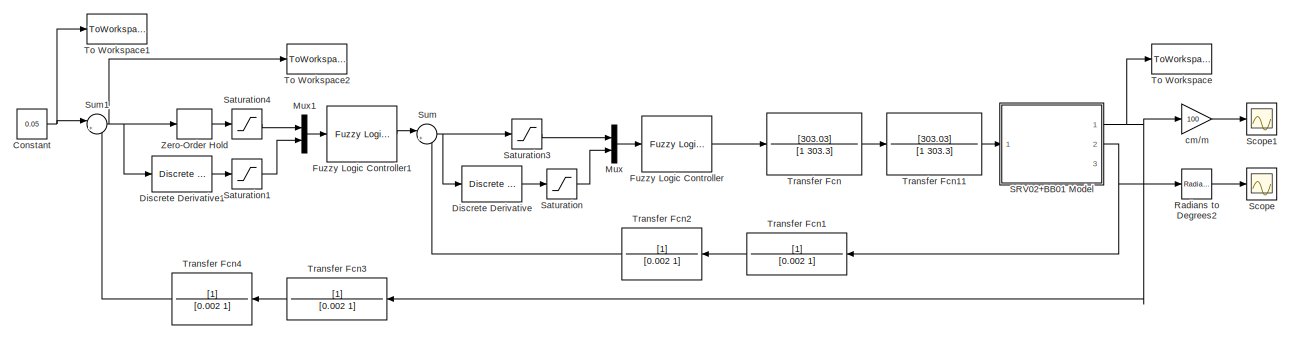
[diagram: root canvas - part 1/2, full width, top band]
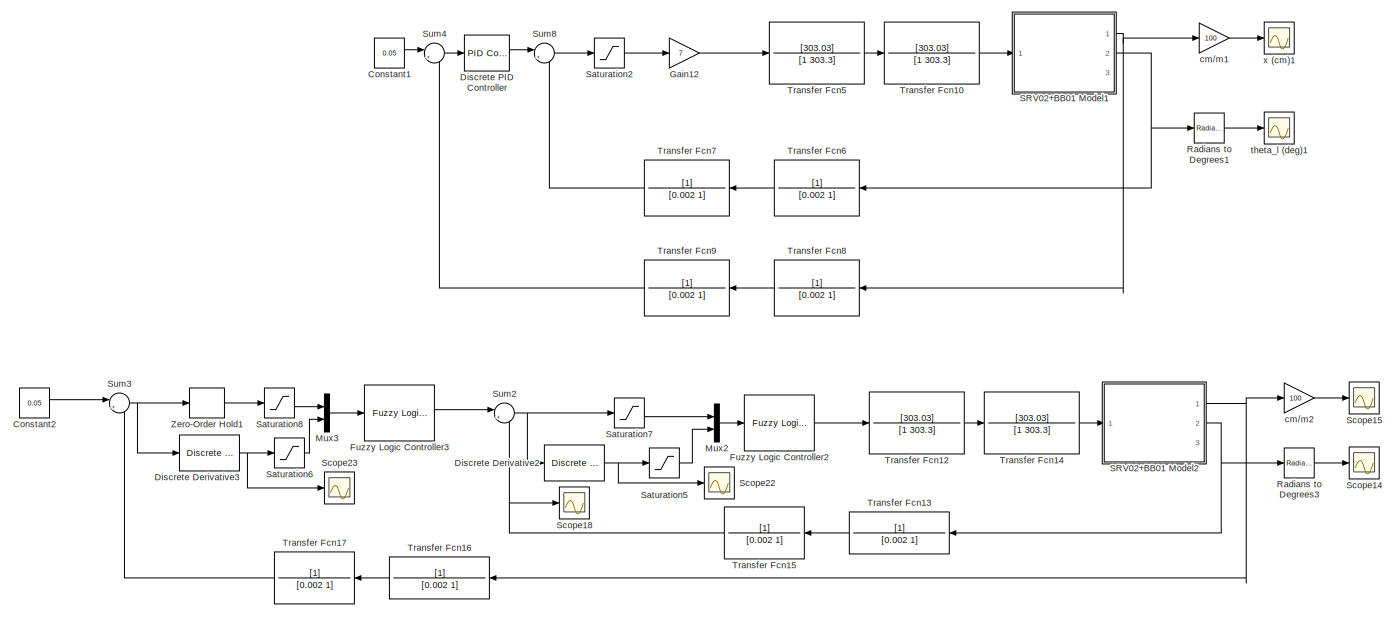
[diagram: root canvas - part 2/2, full width, bottom band]
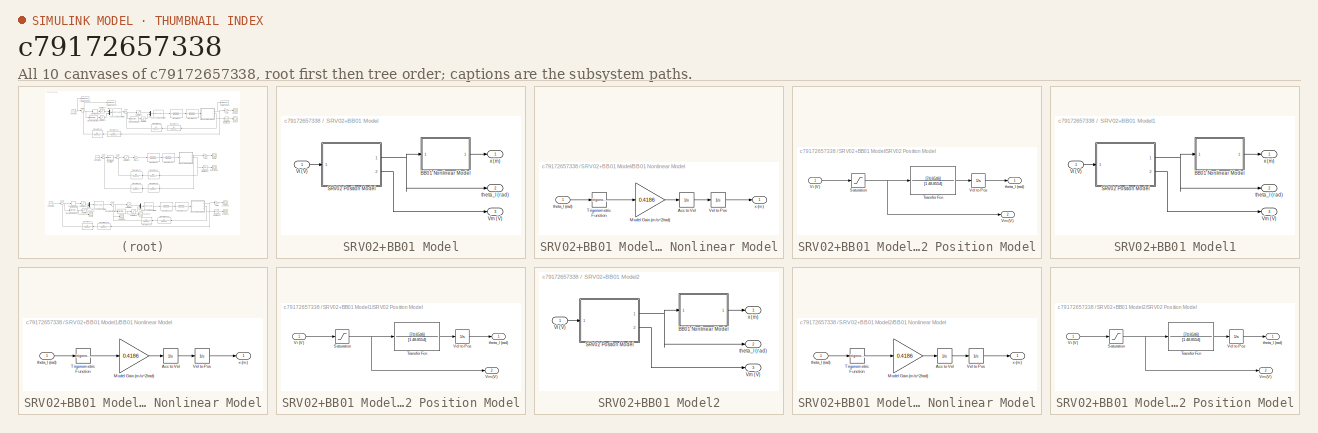
[diagram: thumbnail index - all 10 canvases of the model, root first then tree order]
MODEL slx_c79172657338
KIND model
CONFIG AbsTol = auto
CONFIG FixedStep = auto
CONFIG MaxStep = auto
CONFIG MinStep = auto
CONFIG RelTol = 1e-3
CONFIG SampleTimeConstraint = Unconstrained
CONFIG Solver = ode45
CONFIG SolverMode = SingleTasking
CONFIG SolverName = ode45
CONFIG StartTime = 0.0
CONFIG StopTime = 3
BLOCK [Constant] Constant
  Value = 0.05
BLOCK [Constant] Constant1
  Value = 0.05
BLOCK [Constant] Constant2
  Value = 0.05
BLOCK [Reference] Discrete Derivative  REF=simulink/Discrete/Discrete Derivative
  DoSatur = off
  ICPrevScaledInput = 0.0
  InputProcessing = Elements as channels (sample based)
  LockScale = off
  OutDataType = fixdt(1, 16)
  OutDataTypeStr = Inherit: Inherit via internal rule
  OutMax = []
  OutMin = []
  OutScaling = 2^-10
  OutputDataTypeScalingMode = Inherit via internal rule
  Ports = [1, 1]
  RndMeth = Floor
  SourceBlock = simulink/Discrete/Discrete Derivative
  SourceType = Discrete Derivative
  gainval = 1.0
BLOCK [Reference] Discrete Derivative1  REF=simulink/Discrete/Discrete Derivative
  DoSatur = off
  ICPrevScaledInput = 0.0
  InputProcessing = Elements as channels (sample based)
  LockScale = off
  OutDataType = fixdt(1, 16)
  OutDataTypeStr = Inherit: Inherit via internal rule
  OutMax = []
  OutMin = []
  OutScaling = 2^-10
  OutputDataTypeScalingMode = Inherit via internal rule
  Ports = [1, 1]
  RndMeth = Floor
  SourceBlock = simulink/Discrete/Discrete Derivative
  SourceType = Discrete Derivative
  gainval = 1.0
BLOCK [Reference] Discrete Derivative2  REF=simulink/Discrete/Discrete Derivative
  DoSatur = off
  ICPrevScaledInput = 0.0
  InputProcessing = Elements as channels (sample based)
  LockScale = off
  OutDataType = fixdt(1, 16)
  OutDataTypeStr = Inherit: Inherit via internal rule
  OutMax = []
  OutMin = []
  OutScaling = 2^-10
  OutputDataTypeScalingMode = Inherit via internal rule
  Ports = [1, 1]
  RndMeth = Floor
  SourceBlock = simulink/Discrete/Discrete Derivative
  SourceType = Discrete Derivative
  gainval = 1.0
BLOCK [Reference] Discrete Derivative3  REF=simulink/Discrete/Discrete Derivative
  DoSatur = off
  ICPrevScaledInput = 0.0
  InputProcessing = Elements as channels (sample based)
  LockScale = off
  OutDataType = fixdt(1, 16)
  OutDataTypeStr = Inherit: Inherit via internal rule
  OutMax = []
  OutMin = []
  OutScaling = 2^-10
  OutputDataTypeScalingMode = Inherit via internal rule
  Ports = [1, 1]
  RndMeth = Floor
  SourceBlock = simulink/Discrete/Discrete Derivative
  SourceType = Discrete Derivative
  gainval = 1.0
BLOCK [Reference] Discrete PID Controller  REF=simulink/Continuous/PID Controller
  AntiWindupMode = none
  Controller = PID
  ControllerParametersSource = internal
  D = 6.5
  DGainOutDataTypeStr = Inherit: Inherit via internal rule
  DOutDataTypeStr = Inherit: Inherit via internal rule
  DOutMax = []
  DOutMin = []
  DParamDataTypeStr = Inherit: Inherit via internal rule
  DParamMax = []
  DParamMin = []
  DProdOutDataTypeStr = Inherit: Inherit via internal rule
  DifferentiatorICPrevScaledInput = 0
  DifferentiatorOutDataTypeStr = Inherit: Inherit via internal rule
  DifferentiatorOutMax = []
  DifferentiatorOutMin = []
  ExternalReset = none
  FilterContinuousStateAttributes = ''
  FilterMethod = Forward Euler
  FilterOutDataTypeStr = Inherit: Inherit via internal rule
  FilterOutMax = []
  FilterOutMin = []
  FilterRTWStateStorageClass = Auto
  FilterStateMustResolveToSignalObject = off
  Form = Parallel
  I = 0
  IGainOutDataTypeStr = Inherit: Inherit via internal rule
  IOutDataTypeStr = Inherit: Inherit via internal rule
  IOutMax = []
  IOutMin = []
  IParamDataTypeStr = Inherit: Inherit via internal rule
  IParamMax = []
  IParamMin = []
  IProdOutDataTypeStr = Inherit: Inherit via internal rule
  IgnoreLimit = off
  InitialConditionForFilter = 0
  InitialConditionForIntegrator = 0
  InitialConditionSource = internal
  IntegratorContinuousStateAttributes = ''
  IntegratorMethod = Forward Euler
  IntegratorOutDataTypeStr = Inherit: Inherit via internal rule
  IntegratorOutMax = []
  IntegratorOutMin = []
  IntegratorRTWStateStorageClass = Auto
  IntegratorStateMustResolveToSignalObject = off
  Kb = 1
  KbOutDataTypeStr = Inherit: Inherit via internal rule
  KbOutMax = []
  KbOutMin = []
  KbParamDataTypeStr = Inherit: Inherit via internal rule
  KbParamMax = []
  KbParamMin = []
  Kt = 1
  KtOutDataTypeStr = Inherit: Inherit via internal rule
  KtOutMax = []
  KtOutMin = []
  KtParamDataTypeStr = Inherit: Inherit via internal rule
  KtParamMax = []
  KtParamMin = []
  LimitOutput = off
  LinearizeAsGain = off
  LockScale = off
  LowerSaturationLimit = -inf
  N = 100
  NGainOutDataTypeStr = Inherit: Inherit via internal rule
  NOutDataTypeStr = Inherit: Inherit via internal rule
  NOutMax = []
  NOutMin = []
  NParamDataTypeStr = Inherit: Inherit via internal rule
  NParamMax = []
  NParamMin = []
  NProdOutDataTypeStr = Inherit: Inherit via internal rule
  P = 12
  PGainOutDataTypeStr = Inherit: Inherit via internal rule
  POutDataTypeStr = Inherit: Inherit via internal rule
  POutMax = []
  POutMin = []
  PParamDataTypeStr = Inherit: Inherit via internal rule
  PParamMax = []
  PParamMin = []
  PProdOutDataTypeStr = Inherit: Inherit via internal rule
  Ports = [1, 1]
  RndMeth = Floor
  SampleTime = 12e-3
  SaturateOnIntegerOverflow = off
  SaturationOutDataTypeStr = Inherit: Same as input
  SaturationOutMax = []
  SaturationOutMin = []
  SourceBlock = simulink/Continuous/PID Controller
  SourceType = PID 1dof
  SumAccumDataTypeStr = Inherit: Inherit via internal rule
  SumDAccumDataTypeStr = Inherit: Inherit via internal rule
  SumDOutDataTypeStr = Inherit: Inherit via internal rule
  SumDOutMax = []
  SumDOutMin = []
  SumI1AccumDataTypeStr = Inherit: Inherit via internal rule
  SumI1OutDataTypeStr = Inherit: Inherit via internal rule
  SumI1OutMax = []
  SumI1OutMin = []
  SumI2AccumDataTypeStr = Inherit: Inherit via internal rule
  SumI2OutDataTypeStr = Inherit: Inherit via internal rule
  SumI2OutMax = []
  SumI2OutMin = []
  SumI3AccumDataTypeStr = Inherit: Inherit via internal rule
  SumI3OutDataTypeStr = Inherit: Inherit via internal rule
  SumI3OutMax = []
  SumI3OutMin = []
  SumOutDataTypeStr = Inherit: Inherit via internal rule
  SumOutMax = []
  SumOutMin = []
  TimeDomain = Discrete-time
  TrackingMode = off
  UpperSaturationLimit = inf
  UseFilter = on
  ZeroCross = on
BLOCK [Reference] Fuzzy Logic Controller  REF=fuzblock/Fuzzy Logic   (lib defined in mdl_858b3b3e7478)
Controller
  FIS = angulov6unicamf
  Ports = [1, 1]
  SourceBlock = fuzblock/Fuzzy Logic \nController
  SourceType = Fuzzy Inference System
BLOCK [Reference] Fuzzy Logic Controller1  REF=fuzblock/Fuzzy Logic   (lib defined in mdl_858b3b3e7478)
Controller
  FIS = posicion8unicamf
  Ports = [1, 1]
  SourceBlock = fuzblock/Fuzzy Logic \nController
  SourceType = Fuzzy Inference System
BLOCK [Reference] Fuzzy Logic Controller2  REF=fuzblock/Fuzzy Logic   (lib defined in mdl_858b3b3e7478)
Controller
  FIS = angulov6unicamf
  Ports = [1, 1]
  SourceBlock = fuzblock/Fuzzy Logic \nController
  SourceType = Fuzzy Inference System
BLOCK [Reference] Fuzzy Logic Controller3  REF=fuzblock/Fuzzy Logic   (lib defined in mdl_858b3b3e7478)
Controller
  FIS = optipos3h
  Ports = [1, 1]
  SourceBlock = fuzblock/Fuzzy Logic \nController
  SourceType = Fuzzy Inference System
BLOCK [Gain] Gain12
  Gain = 7
  OutDataTypeStr = Inherit: Inherit via internal rule
  ParamDataTypeStr = Inherit: Inherit via internal rule
  SaturateOnIntegerOverflow = off
BLOCK [Mux] Mux
  DisplayOption = bar
  Inputs = 2
  Ports = [2, 1]
BLOCK [Mux] Mux1
  DisplayOption = bar
  Inputs = 2
  Ports = [2, 1]
BLOCK [Mux] Mux2
  DisplayOption = bar
  Inputs = 2
  Ports = [2, 1]
BLOCK [Mux] Mux3
  DisplayOption = bar
  Inputs = 2
  Ports = [2, 1]
BLOCK [Reference] Radians to Degrees1  REF=simulink_extras/Transformations/Radians
to Degrees
  Ports = [1, 1]
  SourceBlock = simulink_extras/Transformations/Radians\nto Degrees
  SourceType = RadiansToDegrees
BLOCK [Reference] Radians to Degrees2  REF=simulink_extras/Transformations/Radians
to Degrees
  Ports = [1, 1]
  SourceBlock = simulink_extras/Transformations/Radians\nto Degrees
  SourceType = RadiansToDegrees
BLOCK [Reference] Radians to Degrees3  REF=simulink_extras/Transformations/Radians
to Degrees
  Ports = [1, 1]
  SourceBlock = simulink_extras/Transformations/Radians\nto Degrees
  SourceType = RadiansToDegrees
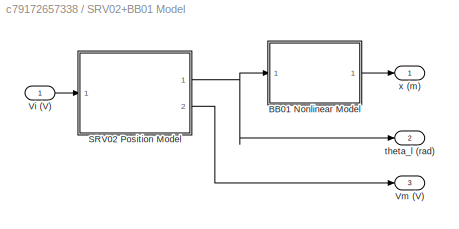
BLOCK [SubSystem] SRV02+BB01 Model
  Ports = [1, 3]
  RequestExecContextInheritance = off
  Variant = off
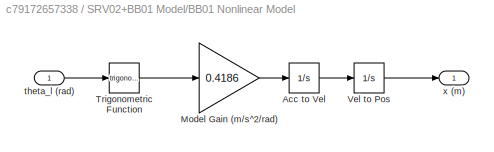
BLOCK [SubSystem] SRV02+BB01 Model/BB01 Nonlinear Model
  Ports = [1, 1]
  RequestExecContextInheritance = off
  Variant = off
BLOCK [Integrator] SRV02+BB01 Model/BB01 Nonlinear Model/Acc to Vel
  Ports = [1, 1]
BLOCK [Gain] SRV02+BB01 Model/BB01 Nonlinear Model/Model Gain (m//s^2//rad)
  Gain = 0.4186
  OutDataTypeStr = Inherit: Inherit via internal rule
  ParamDataTypeStr = Inherit: Inherit via internal rule
  SaturateOnIntegerOverflow = off
BLOCK [Trigonometry] SRV02+BB01 Model/BB01 Nonlinear Model/Trigonometric Function
  Ports = [1, 1]
BLOCK [Integrator] SRV02+BB01 Model/BB01 Nonlinear Model/Vel to Pos
  Ports = [1, 1]
BLOCK [Inport] SRV02+BB01 Model/BB01 Nonlinear Model/theta_l (rad)
  IconDisplay = Port number
BLOCK [Outport] SRV02+BB01 Model/BB01 Nonlinear Model/x (m)
  IconDisplay = Port number
BLOCK [SubSystem] SRV02+BB01 Model/SRV02 Position Model
  Ports = [1, 2]
  RequestExecContextInheritance = off
  Variant = off
BLOCK [Saturate] SRV02+BB01 Model/SRV02 Position Model/Saturation
  InputPortMap = u0
  LowerLimit = -5
  Ports = [1, 1]
  UpperLimit = 5
BLOCK [TransferFcn] SRV02+BB01 Model/SRV02 Position Model/Transfer Fcn
  Denominator = [1 48.8554]
  Numerator = [74.6546]
BLOCK [Integrator] SRV02+BB01 Model/SRV02 Position Model/Vel to Pos
  Ports = [1, 1]
BLOCK [Inport] SRV02+BB01 Model/SRV02 Position Model/Vi (V)
  IconDisplay = Port number
BLOCK [Outport] SRV02+BB01 Model/SRV02 Position Model/Vm (V)
  IconDisplay = Port number
  Port = 2
BLOCK [Outport] SRV02+BB01 Model/SRV02 Position Model/theta_l (rad)
  IconDisplay = Port number
BLOCK [Inport] SRV02+BB01 Model/Vi (V)
  IconDisplay = Port number
BLOCK [Outport] SRV02+BB01 Model/Vm (V)
  IconDisplay = Port number
  Port = 3
BLOCK [Outport] SRV02+BB01 Model/theta_l (rad)
  IconDisplay = Port number
  Port = 2
BLOCK [Outport] SRV02+BB01 Model/x (m)
  IconDisplay = Port number
BLOCK [SubSystem] SRV02+BB01 Model1
  Ports = [1, 3]
  RequestExecContextInheritance = off
  Variant = off
BLOCK [SubSystem] SRV02+BB01 Model1/BB01 Nonlinear Model
  Ports = [1, 1]
  RequestExecContextInheritance = off
  Variant = off
BLOCK [Integrator] SRV02+BB01 Model1/BB01 Nonlinear Model/Acc to Vel
  Ports = [1, 1]
BLOCK [Gain] SRV02+BB01 Model1/BB01 Nonlinear Model/Model Gain (m//s^2//rad)
  Gain = 0.4186
  OutDataTypeStr = Inherit: Inherit via internal rule
  ParamDataTypeStr = Inherit: Inherit via internal rule
  SaturateOnIntegerOverflow = off
BLOCK [Trigonometry] SRV02+BB01 Model1/BB01 Nonlinear Model/Trigonometric Function
  Ports = [1, 1]
BLOCK [Integrator] SRV02+BB01 Model1/BB01 Nonlinear Model/Vel to Pos
  Ports = [1, 1]
BLOCK [Inport] SRV02+BB01 Model1/BB01 Nonlinear Model/theta_l (rad)
  IconDisplay = Port number
BLOCK [Outport] SRV02+BB01 Model1/BB01 Nonlinear Model/x (m)
  IconDisplay = Port number
BLOCK [SubSystem] SRV02+BB01 Model1/SRV02 Position Model
  Ports = [1, 2]
  RequestExecContextInheritance = off
  Variant = off
BLOCK [Saturate] SRV02+BB01 Model1/SRV02 Position Model/Saturation
  InputPortMap = u0
  LowerLimit = -5
  Ports = [1, 1]
  UpperLimit = 5
BLOCK [TransferFcn] SRV02+BB01 Model1/SRV02 Position Model/Transfer Fcn
  Denominator = [1 48.8554]
  Numerator = [74.6546]
BLOCK [Integrator] SRV02+BB01 Model1/SRV02 Position Model/Vel to Pos
  Ports = [1, 1]
BLOCK [Inport] SRV02+BB01 Model1/SRV02 Position Model/Vi (V)
  IconDisplay = Port number
BLOCK [Outport] SRV02+BB01 Model1/SRV02 Position Model/Vm (V)
  IconDisplay = Port number
  Port = 2
BLOCK [Outport] SRV02+BB01 Model1/SRV02 Position Model/theta_l (rad)
  IconDisplay = Port number
BLOCK [Inport] SRV02+BB01 Model1/Vi (V)
  IconDisplay = Port number
BLOCK [Outport] SRV02+BB01 Model1/Vm (V)
  IconDisplay = Port number
  Port = 3
BLOCK [Outport] SRV02+BB01 Model1/theta_l (rad)
  IconDisplay = Port number
  Port = 2
BLOCK [Outport] SRV02+BB01 Model1/x (m)
  IconDisplay = Port number
BLOCK [SubSystem] SRV02+BB01 Model2
  Ports = [1, 3]
  RequestExecContextInheritance = off
  Variant = off
BLOCK [SubSystem] SRV02+BB01 Model2/BB01 Nonlinear Model
  Ports = [1, 1]
  RequestExecContextInheritance = off
  Variant = off
BLOCK [Integrator] SRV02+BB01 Model2/BB01 Nonlinear Model/Acc to Vel
  Ports = [1, 1]
BLOCK [Gain] SRV02+BB01 Model2/BB01 Nonlinear Model/Model Gain (m//s^2//rad)
  Gain = 0.4186
  OutDataTypeStr = Inherit: Inherit via internal rule
  ParamDataTypeStr = Inherit: Inherit via internal rule
  SaturateOnIntegerOverflow = off
BLOCK [Trigonometry] SRV02+BB01 Model2/BB01 Nonlinear Model/Trigonometric Function
  Ports = [1, 1]
BLOCK [Integrator] SRV02+BB01 Model2/BB01 Nonlinear Model/Vel to Pos
  Ports = [1, 1]
BLOCK [Inport] SRV02+BB01 Model2/BB01 Nonlinear Model/theta_l (rad)
  IconDisplay = Port number
BLOCK [Outport] SRV02+BB01 Model2/BB01 Nonlinear Model/x (m)
  IconDisplay = Port number
BLOCK [SubSystem] SRV02+BB01 Model2/SRV02 Position Model
  Ports = [1, 2]
  RequestExecContextInheritance = off
  Variant = off
BLOCK [Saturate] SRV02+BB01 Model2/SRV02 Position Model/Saturation
  InputPortMap = u0
  LowerLimit = -5
  Ports = [1, 1]
  UpperLimit = 5
BLOCK [TransferFcn] SRV02+BB01 Model2/SRV02 Position Model/Transfer Fcn
  Denominator = [1 48.8554]
  Numerator = [74.6546]
BLOCK [Integrator] SRV02+BB01 Model2/SRV02 Position Model/Vel to Pos
  Ports = [1, 1]
BLOCK [Inport] SRV02+BB01 Model2/SRV02 Position Model/Vi (V)
  IconDisplay = Port number
BLOCK [Outport] SRV02+BB01 Model2/SRV02 Position Model/Vm (V)
  IconDisplay = Port number
  Port = 2
BLOCK [Outport] SRV02+BB01 Model2/SRV02 Position Model/theta_l (rad)
  IconDisplay = Port number
BLOCK [Inport] SRV02+BB01 Model2/Vi (V)
  IconDisplay = Port number
BLOCK [Outport] SRV02+BB01 Model2/Vm (V)
  IconDisplay = Port number
  Port = 3
BLOCK [Outport] SRV02+BB01 Model2/theta_l (rad)
  IconDisplay = Port number
  Port = 2
BLOCK [Outport] SRV02+BB01 Model2/x (m)
  IconDisplay = Port number
BLOCK [Saturate] Saturation
  InputPortMap = u0
  LowerLimit = -5
  Ports = [1, 1]
  UpperLimit = 5
BLOCK [Saturate] Saturation1
  InputPortMap = u0
  LowerLimit = -20
  Ports = [1, 1]
  UpperLimit = 20
BLOCK [Saturate] Saturation2
  InputPortMap = u0
  LowerLimit = -0.76
  Ports = [1, 1]
  UpperLimit = 0.76
BLOCK [Saturate] Saturation3
  InputPortMap = u0
  LowerLimit = -0.785
  Ports = [1, 1]
  UpperLimit = 0.785
BLOCK [Saturate] Saturation4
  InputPortMap = u0
  LowerLimit = -0.2
  Ports = [1, 1]
  UpperLimit = 0.2
BLOCK [Saturate] Saturation5
  InputPortMap = u0
  LowerLimit = -5
  Ports = [1, 1]
  UpperLimit = 5
BLOCK [Saturate] Saturation6
  InputPortMap = u0
  LowerLimit = -20
  Ports = [1, 1]
  UpperLimit = 20
BLOCK [Saturate] Saturation7
  InputPortMap = u0
  LowerLimit = -0.785
  Ports = [1, 1]
  UpperLimit = 0.785
BLOCK [Saturate] Saturation8
  InputPortMap = u0
  LowerLimit = -0.2
  Ports = [1, 1]
  UpperLimit = 0.2
BLOCK [Scope] Scope
  DataFormat = StructureWithTime
  Decimation = 1
  Grid = on
  LimitDataPoints = off
  MaxDataPoints = 5000
  NumInputPorts = 1
  Ports = [1]
  SampleInput = off
  SampleTime = -1
  SaveName = ScopeData
  SaveToWorkspace = off
  ShowLegends = off
  TickLabels = OneTimeTick
  TimeRange = auto
  YMax = 37.02972
  YMin = -21.83998
  ZoomMode = on
BLOCK [Scope] Scope1
  DataFormat = Array
  Decimation = 1
  Grid = on
  LimitDataPoints = off
  MaxDataPoints = 5000
  NumInputPorts = 1
  Ports = [1]
  SampleInput = off
  SampleTime = -1
  SaveName = difuso
  SaveToWorkspace = on
  ShowLegends = off
  TickLabels = OneTimeTick
  TimeRange = auto
  YMax = 5.79369
  YMin = -0.64374
  ZoomMode = on
BLOCK [Scope] Scope14
  DataFormat = StructureWithTime
  Decimation = 1
  Grid = on
  LimitDataPoints = off
  MaxDataPoints = 5000
  NumInputPorts = 1
  Ports = [1]
  SampleInput = off
  SampleTime = -1
  SaveName = ScopeData6
  SaveToWorkspace = off
  ShowLegends = off
  TickLabels = OneTimeTick
  TimeRange = auto
  YMax = 37.02972
  YMin = -21.83998
  ZoomMode = on
BLOCK [Scope] Scope15
  DataFormat = Array
  Decimation = 1
  Grid = on
  LimitDataPoints = off
  MaxDataPoints = 5000
  NumInputPorts = 1
  Ports = [1]
  SampleInput = off
  SampleTime = -1
  SaveName = optifuzzy
  SaveToWorkspace = on
  ShowLegends = off
  TickLabels = OneTimeTick
  TimeRange = auto
  YMax = 5.67771
  YMin = -0.63086
  ZoomMode = on
BLOCK [Scope] Scope18
  DataFormat = StructureWithTime
  Decimation = 1
  Grid = on
  LimitDataPoints = off
  MaxDataPoints = 5000
  NumInputPorts = 1
  Ports = [1]
  SampleInput = off
  SampleTime = -1
  SaveName = ScopeData9
  SaveToWorkspace = off
  ShowLegends = off
  TickLabels = OneTimeTick
  TimeRange = auto
  YMax = 0.50458
  YMin = -0.41326
  ZoomMode = on
BLOCK [Scope] Scope22
  DataFormat = StructureWithTime
  Decimation = 1
  Grid = on
  LimitDataPoints = off
  MaxDataPoints = 5000
  NumInputPorts = 1
  Ports = [1]
  SampleInput = off
  SampleTime = -1
  SaveName = ScopeData13
  SaveToWorkspace = off
  ShowLegends = off
  TickLabels = OneTimeTick
  TimeRange = auto
  YMax = 45.64384
  YMin = -11.56987
  ZoomMode = on
BLOCK [Scope] Scope23
  DataFormat = StructureWithTime
  Decimation = 1
  Grid = on
  LimitDataPoints = off
  MaxDataPoints = 5000
  NumInputPorts = 1
  Ports = [1]
  SampleInput = off
  SampleTime = -1
  SaveName = ScopeData14
  SaveToWorkspace = off
  ShowLegends = off
  TickLabels = OneTimeTick
  TimeRange = auto
  YMax = -0.00038
  YMin = -0.00059
  ZoomMode = on
BLOCK [Sum] Sum
  IconShape = round
  InputSameDT = off
  Inputs = |+-
  OutDataTypeStr = Inherit: Inherit via internal rule
  Ports = [2, 1]
  SaturateOnIntegerOverflow = off
BLOCK [Sum] Sum1
  IconShape = round
  InputSameDT = off
  Inputs = |+-
  OutDataTypeStr = Inherit: Inherit via internal rule
  Ports = [2, 1]
  SaturateOnIntegerOverflow = off
BLOCK [Sum] Sum2
  IconShape = round
  InputSameDT = off
  Inputs = |+-
  OutDataTypeStr = Inherit: Inherit via internal rule
  Ports = [2, 1]
  SaturateOnIntegerOverflow = off
BLOCK [Sum] Sum3
  IconShape = round
  InputSameDT = off
  Inputs = |+-
  OutDataTypeStr = Inherit: Inherit via internal rule
  Ports = [2, 1]
  SaturateOnIntegerOverflow = off
BLOCK [Sum] Sum4
  IconShape = round
  InputSameDT = off
  Inputs = |+-
  OutDataTypeStr = Inherit: Inherit via internal rule
  Ports = [2, 1]
  SaturateOnIntegerOverflow = off
BLOCK [Sum] Sum8
  IconShape = round
  InputSameDT = off
  Inputs = |+-
  OutDataTypeStr = Inherit: Inherit via internal rule
  Ports = [2, 1]
  SaturateOnIntegerOverflow = off
BLOCK [ToWorkspace] To Workspace
  MaxDataPoints = inf
  Ports = [1]
  SampleTime = -1
  SaveFormat = Structure With Time
  VariableName = salida
BLOCK [ToWorkspace] To Workspace1
  MaxDataPoints = inf
  Ports = [1]
  SampleTime = -1
  VariableName = u
BLOCK [ToWorkspace] To Workspace2
  MaxDataPoints = inf
  Ports = [1]
  SampleTime = -1
  VariableName = ess
BLOCK [TransferFcn] Transfer Fcn
  Denominator = [1 303.3]
  Numerator = [303.03]
BLOCK [TransferFcn] Transfer Fcn1
  Denominator = [0.002 1]
BLOCK [TransferFcn] Transfer Fcn10
  Denominator = [1 303.3]
  Numerator = [303.03]
BLOCK [TransferFcn] Transfer Fcn11
  Denominator = [1 303.3]
  Numerator = [303.03]
BLOCK [TransferFcn] Transfer Fcn12
  Denominator = [1 303.3]
  Numerator = [303.03]
BLOCK [TransferFcn] Transfer Fcn13
  Denominator = [0.002 1]
BLOCK [TransferFcn] Transfer Fcn14
  Denominator = [1 303.3]
  Numerator = [303.03]
BLOCK [TransferFcn] Transfer Fcn15
  Denominator = [0.002 1]
BLOCK [TransferFcn] Transfer Fcn16
  Denominator = [0.002 1]
BLOCK [TransferFcn] Transfer Fcn17
  Denominator = [0.002 1]
BLOCK [TransferFcn] Transfer Fcn2
  Denominator = [0.002 1]
BLOCK [TransferFcn] Transfer Fcn3
  Denominator = [0.002 1]
BLOCK [TransferFcn] Transfer Fcn4
  Denominator = [0.002 1]
BLOCK [TransferFcn] Transfer Fcn5
  Denominator = [1 303.3]
  Numerator = [303.03]
BLOCK [TransferFcn] Transfer Fcn6
  Denominator = [0.002 1]
BLOCK [TransferFcn] Transfer Fcn7
  Denominator = [0.002 1]
BLOCK [TransferFcn] Transfer Fcn8
  Denominator = [0.002 1]
BLOCK [TransferFcn] Transfer Fcn9
  Denominator = [0.002 1]
BLOCK [ZeroOrderHold] Zero-Order Hold
  SampleTime = 12e-3
BLOCK [ZeroOrderHold] Zero-Order Hold1
  SampleTime = 12e-3
BLOCK [Gain] cm//m
  Gain = 100
  OutDataTypeStr = Inherit: Inherit via internal rule
  ParamDataTypeStr = Inherit: Inherit via internal rule
  SaturateOnIntegerOverflow = off
BLOCK [Gain] cm//m1
  Gain = 100
  OutDataTypeStr = Inherit: Inherit via internal rule
  ParamDataTypeStr = Inherit: Inherit via internal rule
  SaturateOnIntegerOverflow = off
BLOCK [Gain] cm//m2
  Gain = 100
  OutDataTypeStr = Inherit: Inherit via internal rule
  ParamDataTypeStr = Inherit: Inherit via internal rule
  SaturateOnIntegerOverflow = off
BLOCK [Scope] theta_l (deg)1
  DataFormat = Array
  Decimation = 1
  Grid = on
  LimitDataPoints = off
  MaxDataPoints = 5000
  NumInputPorts = 1
  Ports = [1]
  SampleInput = off
  SampleTime = -1
  SaveName = ScopeData8
  SaveToWorkspace = on
  ShowLegends = off
  TickLabels = OneTimeTick
  TimeRange = 0.2
  YMax = 4.78166
  YMin = -25.81025
  ZoomMode = on
BLOCK [Scope] x (cm)1
  DataFormat = Array
  Decimation = 1
  Grid = on
  LimitDataPoints = off
  MaxDataPoints = 5000
  NumInputPorts = 1
  Ports = [1]
  SampleInput = off
  SampleTime = -1
  SaveName = convencional
  SaveToWorkspace = on
  ShowLegends = off
  TickLabels = OneTimeTick
  TimeRange = 10
  YMax = 6.30365
  YMin = -0.70041
  ZoomMode = on
LINE Constant1:1 -> Sum4:1
LINE Constant2:1 -> Sum3:1
NET Constant:1 -> Sum1:1, To Workspace1:1
LINE Discrete Derivative1:1 -> Saturation1:1
NET Discrete Derivative2:1 -> Saturation5:1, Scope22:1
NET Discrete Derivative3:1 -> Saturation6:1, Scope23:1
LINE Discrete Derivative:1 -> Saturation:1
LINE Discrete PID Controller:1 -> Sum8:1
LINE Fuzzy Logic Controller1:1 -> Sum:1
LINE Fuzzy Logic Controller2:1 -> Transfer Fcn12:1
LINE Fuzzy Logic Controller3:1 -> Sum2:1
LINE Fuzzy Logic Controller:1 -> Transfer Fcn:1
LINE Gain12:1 -> Transfer Fcn5:1
LINE Mux1:1 -> Fuzzy Logic Controller1:1
LINE Mux2:1 -> Fuzzy Logic Controller2:1
LINE Mux3:1 -> Fuzzy Logic Controller3:1
LINE Mux:1 -> Fuzzy Logic Controller:1
LINE Radians to Degrees1:1 -> theta_l (deg)1:1
LINE Radians to Degrees2:1 -> Scope:1
LINE Radians to Degrees3:1 -> Scope14:1
LINE SRV02+BB01 Model/BB01 Nonlinear Model/Acc to Vel:1 -> SRV02+BB01 Model/BB01 Nonlinear Model/Vel to Pos:1
LINE SRV02+BB01 Model/BB01 Nonlinear Model/Model Gain (m//s^2//rad):1 -> SRV02+BB01 Model/BB01 Nonlinear Model/Acc to Vel:1
LINE SRV02+BB01 Model/BB01 Nonlinear Model/Trigonometric Function:1 -> SRV02+BB01 Model/BB01 Nonlinear Model/Model Gain (m//s^2//rad):1
LINE SRV02+BB01 Model/BB01 Nonlinear Model/Vel to Pos:1 -> SRV02+BB01 Model/BB01 Nonlinear Model/x (m):1
LINE SRV02+BB01 Model/BB01 Nonlinear Model/theta_l (rad):1 -> SRV02+BB01 Model/BB01 Nonlinear Model/Trigonometric Function:1
LINE SRV02+BB01 Model/BB01 Nonlinear Model:1 -> SRV02+BB01 Model/x (m):1
NET SRV02+BB01 Model/SRV02 Position Model/Saturation:1 -> SRV02+BB01 Model/SRV02 Position Model/Transfer Fcn:1, SRV02+BB01 Model/SRV02 Position Model/Vm (V):1
LINE SRV02+BB01 Model/SRV02 Position Model/Transfer Fcn:1 -> SRV02+BB01 Model/SRV02 Position Model/Vel to Pos:1
LINE SRV02+BB01 Model/SRV02 Position Model/Vel to Pos:1 -> SRV02+BB01 Model/SRV02 Position Model/theta_l (rad):1
LINE SRV02+BB01 Model/SRV02 Position Model/Vi (V):1 -> SRV02+BB01 Model/SRV02 Position Model/Saturation:1
NET SRV02+BB01 Model/SRV02 Position Model:1 -> SRV02+BB01 Model/BB01 Nonlinear Model:1, SRV02+BB01 Model/theta_l (rad):1
LINE SRV02+BB01 Model/SRV02 Position Model:2 -> SRV02+BB01 Model/Vm (V):1
LINE SRV02+BB01 Model/Vi (V):1 -> SRV02+BB01 Model/SRV02 Position Model:1
LINE SRV02+BB01 Model1/BB01 Nonlinear Model/Acc to Vel:1 -> SRV02+BB01 Model1/BB01 Nonlinear Model/Vel to Pos:1
LINE SRV02+BB01 Model1/BB01 Nonlinear Model/Model Gain (m//s^2//rad):1 -> SRV02+BB01 Model1/BB01 Nonlinear Model/Acc to Vel:1
LINE SRV02+BB01 Model1/BB01 Nonlinear Model/Trigonometric Function:1 -> SRV02+BB01 Model1/BB01 Nonlinear Model/Model Gain (m//s^2//rad):1
LINE SRV02+BB01 Model1/BB01 Nonlinear Model/Vel to Pos:1 -> SRV02+BB01 Model1/BB01 Nonlinear Model/x (m):1
LINE SRV02+BB01 Model1/BB01 Nonlinear Model/theta_l (rad):1 -> SRV02+BB01 Model1/BB01 Nonlinear Model/Trigonometric Function:1
LINE SRV02+BB01 Model1/BB01 Nonlinear Model:1 -> SRV02+BB01 Model1/x (m):1
NET SRV02+BB01 Model1/SRV02 Position Model/Saturation:1 -> SRV02+BB01 Model1/SRV02 Position Model/Transfer Fcn:1, SRV02+BB01 Model1/SRV02 Position Model/Vm (V):1
LINE SRV02+BB01 Model1/SRV02 Position Model/Transfer Fcn:1 -> SRV02+BB01 Model1/SRV02 Position Model/Vel to Pos:1
LINE SRV02+BB01 Model1/SRV02 Position Model/Vel to Pos:1 -> SRV02+BB01 Model1/SRV02 Position Model/theta_l (rad):1
LINE SRV02+BB01 Model1/SRV02 Position Model/Vi (V):1 -> SRV02+BB01 Model1/SRV02 Position Model/Saturation:1
NET SRV02+BB01 Model1/SRV02 Position Model:1 -> SRV02+BB01 Model1/BB01 Nonlinear Model:1, SRV02+BB01 Model1/theta_l (rad):1
LINE SRV02+BB01 Model1/SRV02 Position Model:2 -> SRV02+BB01 Model1/Vm (V):1
LINE SRV02+BB01 Model1/Vi (V):1 -> SRV02+BB01 Model1/SRV02 Position Model:1
NET SRV02+BB01 Model1:1 -> Transfer Fcn8:1, cm//m1:1
NET SRV02+BB01 Model1:2 -> Radians to Degrees1:1, Transfer Fcn6:1
LINE SRV02+BB01 Model2/BB01 Nonlinear Model/Acc to Vel:1 -> SRV02+BB01 Model2/BB01 Nonlinear Model/Vel to Pos:1
LINE SRV02+BB01 Model2/BB01 Nonlinear Model/Model Gain (m//s^2//rad):1 -> SRV02+BB01 Model2/BB01 Nonlinear Model/Acc to Vel:1
LINE SRV02+BB01 Model2/BB01 Nonlinear Model/Trigonometric Function:1 -> SRV02+BB01 Model2/BB01 Nonlinear Model/Model Gain (m//s^2//rad):1
LINE SRV02+BB01 Model2/BB01 Nonlinear Model/Vel to Pos:1 -> SRV02+BB01 Model2/BB01 Nonlinear Model/x (m):1
LINE SRV02+BB01 Model2/BB01 Nonlinear Model/theta_l (rad):1 -> SRV02+BB01 Model2/BB01 Nonlinear Model/Trigonometric Function:1
LINE SRV02+BB01 Model2/BB01 Nonlinear Model:1 -> SRV02+BB01 Model2/x (m):1
NET SRV02+BB01 Model2/SRV02 Position Model/Saturation:1 -> SRV02+BB01 Model2/SRV02 Position Model/Transfer Fcn:1, SRV02+BB01 Model2/SRV02 Position Model/Vm (V):1
LINE SRV02+BB01 Model2/SRV02 Position Model/Transfer Fcn:1 -> SRV02+BB01 Model2/SRV02 Position Model/Vel to Pos:1
LINE SRV02+BB01 Model2/SRV02 Position Model/Vel to Pos:1 -> SRV02+BB01 Model2/SRV02 Position Model/theta_l (rad):1
LINE SRV02+BB01 Model2/SRV02 Position Model/Vi (V):1 -> SRV02+BB01 Model2/SRV02 Position Model/Saturation:1
NET SRV02+BB01 Model2/SRV02 Position Model:1 -> SRV02+BB01 Model2/BB01 Nonlinear Model:1, SRV02+BB01 Model2/theta_l (rad):1
LINE SRV02+BB01 Model2/SRV02 Position Model:2 -> SRV02+BB01 Model2/Vm (V):1
LINE SRV02+BB01 Model2/Vi (V):1 -> SRV02+BB01 Model2/SRV02 Position Model:1
NET SRV02+BB01 Model2:1 -> Transfer Fcn16:1, cm//m2:1
NET SRV02+BB01 Model2:2 -> Radians to Degrees3:1, Transfer Fcn13:1
NET SRV02+BB01 Model:1 -> To Workspace:1, Transfer Fcn3:1, cm//m:1
NET SRV02+BB01 Model:2 -> Radians to Degrees2:1, Transfer Fcn1:1
LINE Saturation1:1 -> Mux1:2
LINE Saturation2:1 -> Gain12:1
LINE Saturation3:1 -> Mux:1
LINE Saturation4:1 -> Mux1:1
LINE Saturation5:1 -> Mux2:2
LINE Saturation6:1 -> Mux3:2
LINE Saturation7:1 -> Mux2:1
LINE Saturation8:1 -> Mux3:1
LINE Saturation:1 -> Mux:2
NET Sum1:1 -> Discrete Derivative1:1, To Workspace2:1, Zero-Order Hold:1
NET Sum2:1 -> Discrete Derivative2:1, Saturation7:1
NET Sum3:1 -> Discrete Derivative3:1, Zero-Order Hold1:1
LINE Sum4:1 -> Discrete PID Controller:1
LINE Sum8:1 -> Saturation2:1
NET Sum:1 -> Discrete Derivative:1, Saturation3:1
LINE Transfer Fcn10:1 -> SRV02+BB01 Model1:1
LINE Transfer Fcn11:1 -> SRV02+BB01 Model:1
LINE Transfer Fcn12:1 -> Transfer Fcn14:1
LINE Transfer Fcn13:1 -> Transfer Fcn15:1
LINE Transfer Fcn14:1 -> SRV02+BB01 Model2:1
NET Transfer Fcn15:1 -> Scope18:1, Sum2:2
LINE Transfer Fcn16:1 -> Transfer Fcn17:1
LINE Transfer Fcn17:1 -> Sum3:2
LINE Transfer Fcn1:1 -> Transfer Fcn2:1
LINE Transfer Fcn2:1 -> Sum:2
LINE Transfer Fcn3:1 -> Transfer Fcn4:1
LINE Transfer Fcn4:1 -> Sum1:2
LINE Transfer Fcn5:1 -> Transfer Fcn10:1
LINE Transfer Fcn6:1 -> Transfer Fcn7:1
LINE Transfer Fcn7:1 -> Sum8:2
LINE Transfer Fcn8:1 -> Transfer Fcn9:1
LINE Transfer Fcn9:1 -> Sum4:2
LINE Transfer Fcn:1 -> Transfer Fcn11:1
LINE Zero-Order Hold1:1 -> Saturation8:1
LINE Zero-Order Hold:1 -> Saturation4:1
LINE cm//m1:1 -> x (cm)1:1
LINE cm//m2:1 -> Scope15:1
LINE cm//m:1 -> Scope1:1
note: NET lines group one-source signal fan-out (src -> all destinations, sorted); 1:1 wires keep LINE
